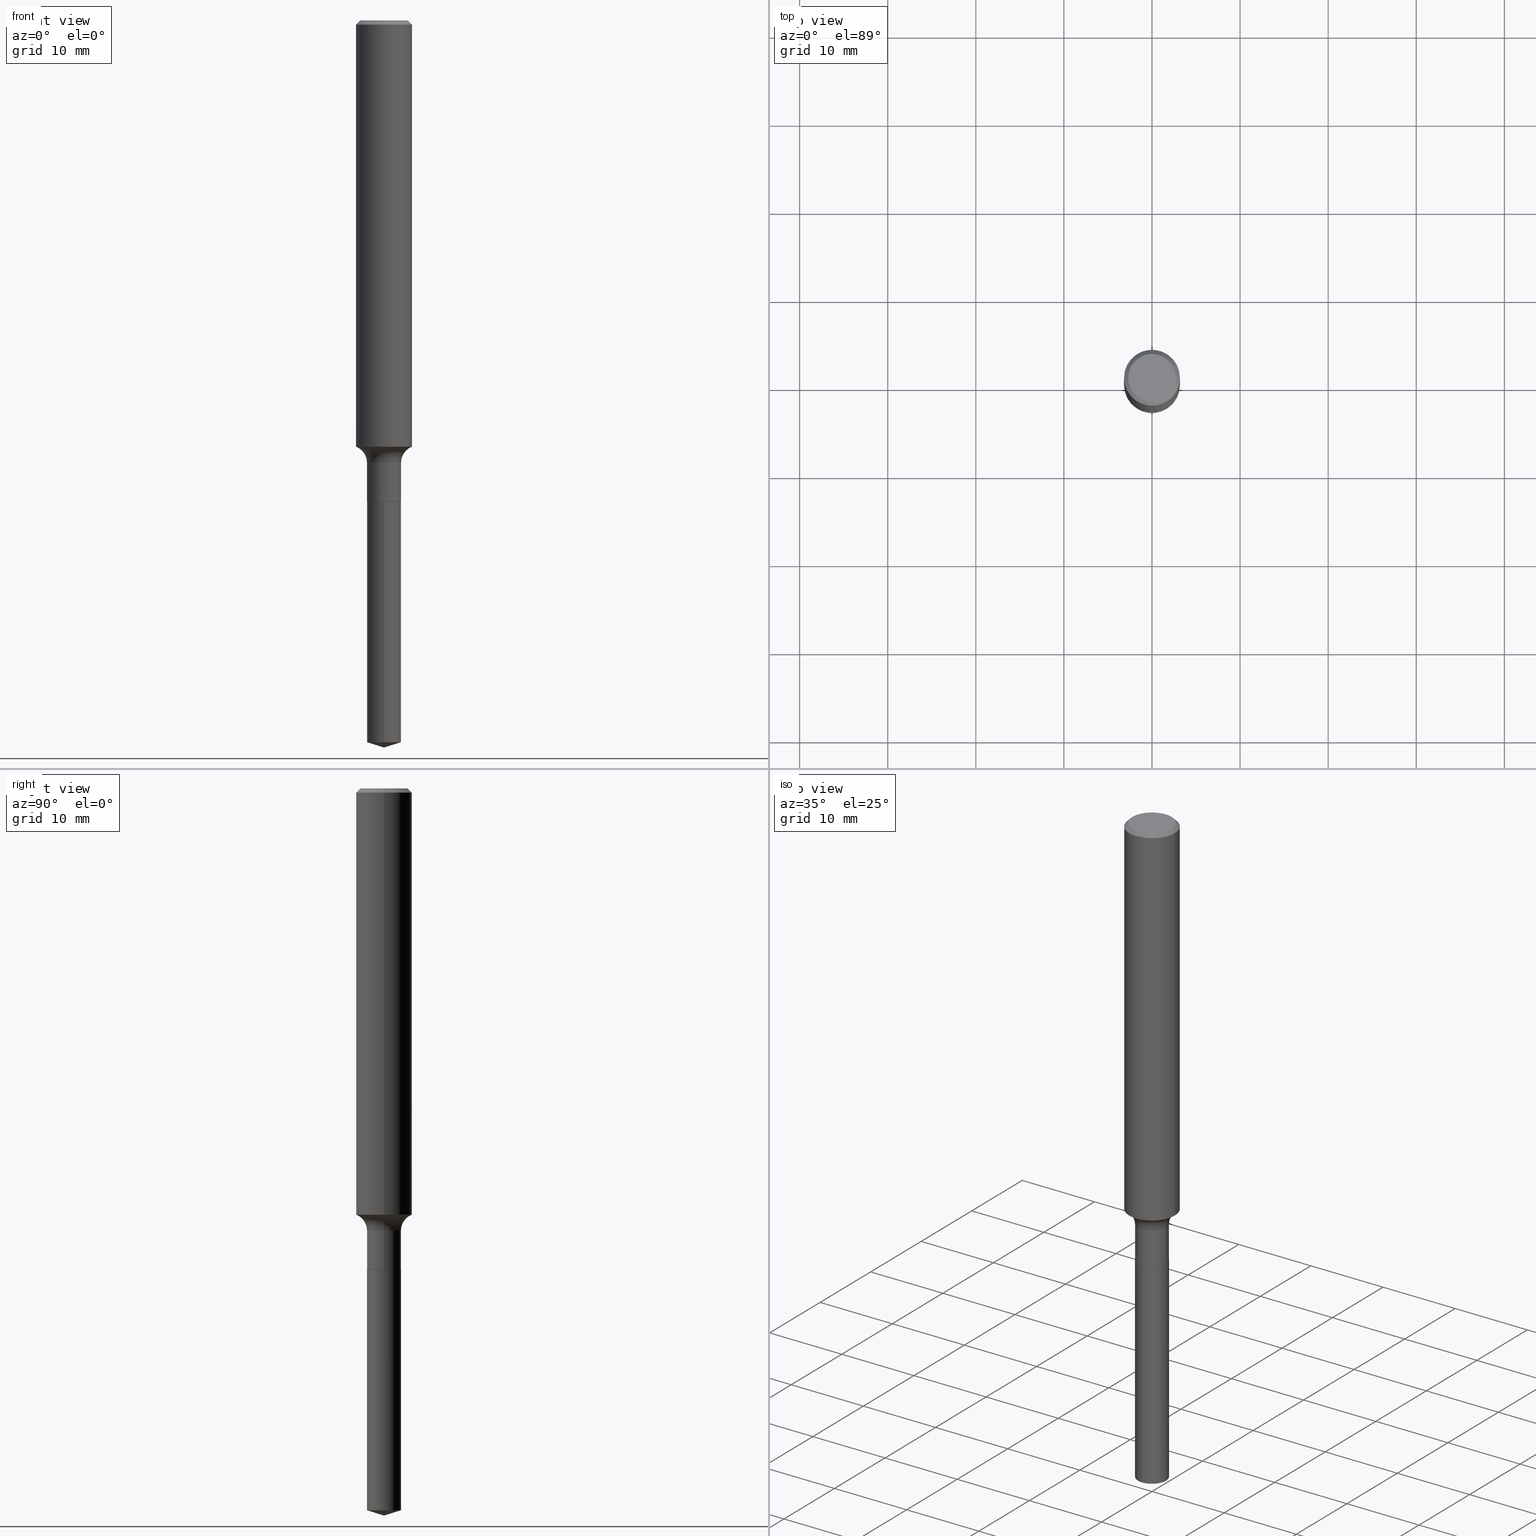
[diagram: canonical four-view strip — front | top / right | iso, engineering-drawing reading convention]
A machine part, canonical four-view strip (front | top / right | iso — engineering-drawing reading convention). The complete STEP part file that produces these views, byte-faithful:
ISO-10303-21;
HEADER;
FILE_DESCRIPTION (( 'STEP AP203' ),
    '1' );
FILE_NAME ('52321.STEP',
    '2024-04-19T13:37:58',
    ( '' ),
    ( '' ),
    'SwSTEP 2.0',
    'SolidWorks 2023',
    '' );
FILE_SCHEMA (( 'CONFIG_CONTROL_DESIGN' ));
ENDSEC;

DATA;
#1 = ORIENTED_EDGE ( 'NONE', *, *, #85, .F. ) ;
#2 = AXIS2_PLACEMENT_3D ( 'NONE', #127, #201, #11 ) ;
#3 = CIRCLE ( 'NONE', #339, 0.1250000000000000000 ) ;
#4 = EDGE_LOOP ( 'NONE', ( #135, #98 ) ) ;
#5 = DIRECTION ( 'NONE',  ( 1.000000000000000000, -6.982962677686262766E-15, 0.000000000000000000 ) ) ;
#6 = MANIFOLD_SOLID_BREP ( 'Body-Move/Copy2[1]', #26 ) ;
#7 = CARTESIAN_POINT ( 'NONE',  ( -0.07600000000000001199, -6.667627022663171914E-15, -2.151499999999999968 ) ) ;
#8 = ORIENTED_EDGE ( 'NONE', *, *, #227, .F. ) ;
#9 = PERSON_AND_ORGANIZATION ( #51, #421 ) ;
#10 = CARTESIAN_POINT ( 'NONE',  ( 4.658108041399870066E-29, -6.650543756570650760E-15, -1.904791436970479923 ) ) ;
#11 = DIRECTION ( 'NONE',  ( 1.000000000000000000, -6.982962677686267499E-15, 4.876176775795936353E-29 ) ) ;
#12 = CARTESIAN_POINT ( 'NONE',  ( 4.835180923589252545E-29, -6.903356903160668236E-15, -1.977200000000000069 ) ) ;
#13 = EDGE_LOOP ( 'NONE', ( #288, #345, #280, #70 ) ) ;
#14 = PERSON_AND_ORGANIZATION_ROLE ( 'creator' ) ;
#15 = DIRECTION ( 'NONE',  ( -6.982962677686265922E-15, -1.000000000000000000, 0.000000000000000000 ) ) ;
#16 = PERSON_AND_ORGANIZATION_ROLE ( 'design_owner' ) ;
#17 = EDGE_CURVE ( 'NONE', #256, #436, #449, .T. ) ;
#18 = AXIS2_PLACEMENT_3D ( 'NONE', #110, #335, #264 ) ;
#19 = ORIENTED_EDGE ( 'NONE', *, *, #361, .F. ) ;
#20 = DATE_TIME_ROLE ( 'classification_date' ) ;
#21 = DESIGN_CONTEXT ( 'detailed design', #482, 'design' ) ;
#22 = EDGE_CURVE ( 'NONE', #256, #107, #464, .T. ) ;
#23 = CALENDAR_DATE ( 2024, 19, 4 ) ;
#24 = CARTESIAN_POINT ( 'NONE',  ( -8.833118292718339278E-28, 1.261116398868396196E-13, 36.12007874015748143 ) ) ;
#25 = AXIS2_PLACEMENT_3D ( 'NONE', #332, #69, #301 ) ;
#26 = CLOSED_SHELL ( 'NONE', ( #354, #43, #336, #484, #233 ) ) ;
#27 = EDGE_CURVE ( 'NONE', #355, #222, #452, .T. ) ;
#28 = ORIENTED_EDGE ( 'NONE', *, *, #405, .F. ) ;
#29 = DIRECTION ( 'NONE',  ( -2.445468806185136597E-29, 3.491481338843145583E-15, 1.000000000000000000 ) ) ;
#30 = ORIENTED_EDGE ( 'NONE', *, *, #227, .T. ) ;
#31 = DIRECTION ( 'NONE',  ( -0.7071067811866259545, 7.493145998870638150E-15, 0.7071067811864690800 ) ) ;
#32 = APPROVAL ( #160, 'UNSPECIFIED' ) ;
#33 = EDGE_CURVE ( 'NONE', #436, #406, #439, .T. ) ;
#34 = PRODUCT_DEFINITION_FORMATION_WITH_SPECIFIED_SOURCE ( 'ANY', '', #238, .NOT_KNOWN. ) ;
#35 = CARTESIAN_POINT ( 'NONE',  ( 5.262648870910414216E-29, -7.513667841190447972E-15, -2.151999999999999691 ) ) ;
#36 = AXIS2_PLACEMENT_3D ( 'NONE', #35, #266, #182 ) ;
#37 = EDGE_CURVE ( 'NONE', #478, #126, #112, .T. ) ;
#38 = CONICAL_SURFACE ( 'NONE', #208, 124.8659371009130439, 1.265363707695887019 ) ;
#39 = AXIS2_PLACEMENT_3D ( 'NONE', #108, #144, #262 ) ;
#40 = DIRECTION ( 'NONE',  ( 2.445468806185136597E-29, -3.491481338843145583E-15, -1.000000000000000000 ) ) ;
#41 = CARTESIAN_POINT ( 'NONE',  ( 0.1250000000000000000, -9.383356098140928781E-16, -0.01875000000000014155 ) ) ;
#42 = ORIENTED_EDGE ( 'NONE', *, *, #308, .F. ) ;
#43 = ADVANCED_FACE ( 'NONE', ( #375 ), #272, .T. ) ;
#44 = CARTESIAN_POINT ( 'NONE',  ( 0.000000000000000000, 0.000000000000000000, 0.000000000000000000 ) ) ;
#45 = ORIENTED_EDGE ( 'NONE', *, *, #361, .T. ) ;
#46 = PERSON_AND_ORGANIZATION ( #51, #421 ) ;
#47 = CIRCLE ( 'NONE', #313, 0.1250000000000002776 ) ;
#48 = VECTOR ( 'NONE', #459, 39.37007874015748143 ) ;
#49 = DIRECTION ( 'NONE',  ( 6.982962677686265922E-15, 1.000000000000000000, -3.491456751938116004E-15 ) ) ;
#50 = COORDINATED_UNIVERSAL_TIME_OFFSET ( 5, 0, .BEHIND. ) ;
#51 = PERSON ( 'UNSPECIFIED', 'UNSPECIFIED', 'UNSPECIFIED', ('UNSPECIFIED'), ('UNSPECIFIED'), ('UNSPECIFIED') ) ;
#52 = CARTESIAN_POINT ( 'NONE',  ( 5.262648870910414216E-29, -7.513667841190447972E-15, -2.151999999999999691 ) ) ;
#53 = PLANE ( 'NONE',  #286 ) ;
#54 = ORIENTED_EDGE ( 'NONE', *, *, #296, .F. ) ;
#55 = CALENDAR_DATE ( 2024, 19, 4 ) ;
#56 = EDGE_CURVE ( 'NONE', #139, #236, #410, .T. ) ;
#57 =( CONVERSION_BASED_UNIT ( 'INCH', #490 ) LENGTH_UNIT ( ) NAMED_UNIT ( #134 ) );
#58 = DIRECTION ( 'NONE',  ( -6.982962677686265922E-15, -1.000000000000000000, 0.000000000000000000 ) ) ;
#59 = EDGE_LOOP ( 'NONE', ( #28, #319, #132, #45 ) ) ;
#60 = ADVANCED_FACE ( 'NONE', ( #442 ), #128, .T. ) ;
#61 = VECTOR ( 'NONE', #229, 39.37007874015748143 ) ;
#62 = ORIENTED_EDGE ( 'NONE', *, *, #147, .T. ) ;
#63 = LOCAL_TIME ( 9, 37, 58.00000000000000000, #372 ) ;
#64 = CARTESIAN_POINT ( 'NONE',  ( -0.1250000000000000000, -2.469826096136851959E-15, -0.01875000000000014155 ) ) ;
#65 = APPROVAL_ROLE ( '' ) ;
#66 = CARTESIAN_POINT ( 'NONE',  ( 7.947829419169752974E-29, -1.134723444379887918E-14, -3.250000000000000000 ) ) ;
#67 = ORIENTED_EDGE ( 'NONE', *, *, #373, .T. ) ;
#68 =( LENGTH_UNIT ( ) NAMED_UNIT ( * ) SI_UNIT ( $, .METRE. ) );
#69 = DIRECTION ( 'NONE',  ( -2.445468806185136597E-29, 3.491481338843145583E-15, 1.000000000000000000 ) ) ;
#70 = ORIENTED_EDGE ( 'NONE', *, *, #33, .F. ) ;
#71 = CIRCLE ( 'NONE', #170, 0.07599999999999999811 ) ;
#72 = CARTESIAN_POINT ( 'NONE',  ( -5.307051635040773287E-16, -0.07600000000001126688, -3.226037292045197180 ) ) ;
#73 = ORIENTED_EDGE ( 'NONE', *, *, #27, .T. ) ;
#74 = CC_DESIGN_PERSON_AND_ORGANIZATION_ASSIGNMENT ( #174, #16, ( #238 ) ) ;
#75 = DIRECTION ( 'NONE',  ( 0.7071067811865447972, -7.319954787623245001E-15, -0.7071067811865501263 ) ) ;
#76 = CARTESIAN_POINT ( 'NONE',  ( -0.07599999999999998423, 5.400124791776760292E-16, -3.738390668593727996E-30 ) ) ;
#77 = DIRECTION ( 'NONE',  ( 1.000000000000000000, -6.982962677686263555E-15, 0.000000000000000000 ) ) ;
#78 = SECURITY_CLASSIFICATION ( '', '', #327 ) ;
#79 = AXIS2_PLACEMENT_3D ( 'NONE', #88, #86, #358 ) ;
#80 = EDGE_CURVE ( 'NONE', #302, #468, #380, .T. ) ;
#81 = DIRECTION ( 'NONE',  ( 1.000000000000000000, -6.982962677686269866E-15, 0.000000000000000000 ) ) ;
#82 = AXIS2_PLACEMENT_3D ( 'NONE', #97, #172, #435 ) ;
#83 = CIRCLE ( 'NONE', #263, 0.1062499999999999972 ) ;
#84 = VERTEX_POINT ( 'NONE', #342 ) ;
#85 = EDGE_CURVE ( 'NONE', #355, #256, #446, .T. ) ;
#86 = DIRECTION ( 'NONE',  ( -2.445468806185136597E-29, 3.491481338843145583E-15, 1.000000000000000000 ) ) ;
#87 = PERSON_AND_ORGANIZATION ( #51, #421 ) ;
#88 = CARTESIAN_POINT ( 'NONE',  ( -1.591006383764330940E-46, 2.271535455632768948E-32, 6.505936120470318766E-18 ) ) ;
#89 = ORIENTED_EDGE ( 'NONE', *, *, #317, .T. ) ;
#90 = PERSON_AND_ORGANIZATION ( #51, #421 ) ;
#91 = CONICAL_SURFACE ( 'NONE', #278, 0.1250000000000000000, 0.7853981633974445042 ) ;
#92 = ADVANCED_FACE ( 'NONE', ( #407 ), #473, .F. ) ;
#93 = DIRECTION ( 'NONE',  ( 1.000000000000000000, -6.982962677686263555E-15, 0.000000000000000000 ) ) ;
#94 = VERTEX_POINT ( 'NONE', #72 ) ;
#95 = FACE_OUTER_BOUND ( 'NONE', #359, .T. ) ;
#96 = ORIENTED_EDGE ( 'NONE', *, *, #417, .T. ) ;
#97 = CARTESIAN_POINT ( 'NONE',  ( 0.000000000000000000, 0.000000000000000000, 0.000000000000000000 ) ) ;
#98 = ORIENTED_EDGE ( 'NONE', *, *, #241, .T. ) ;
#99 = APPROVAL_ROLE ( '' ) ;
#100 = CARTESIAN_POINT ( 'NONE',  ( 0.000000000000000000, 0.000000000000000000, 0.000000000000000000 ) ) ;
#101 = APPROVAL_PERSON_ORGANIZATION ( #9, #32, #99 ) ;
#102 = ORIENTED_EDGE ( 'NONE', *, *, #443, .T. ) ;
#103 = CARTESIAN_POINT ( 'NONE',  ( 5.400124791777550139E-16, 0.07599999999998874323, -3.226037292045197180 ) ) ;
#104 = CARTESIAN_POINT ( 'NONE',  ( 7.947830067142860884E-29, -1.134723444379887918E-14, -3.250000000000000000 ) ) ;
#105 = ORIENTED_EDGE ( 'NONE', *, *, #56, .F. ) ;
#106 = DIRECTION ( 'NONE',  ( 2.445468806185136597E-29, -3.491481338843145583E-15, -1.000000000000000000 ) ) ;
#107 = VERTEX_POINT ( 'NONE', #299 ) ;
#108 = CARTESIAN_POINT ( 'NONE',  ( 4.835180923589252545E-29, -6.903356903160668236E-15, -1.977200000000000069 ) ) ;
#109 = CIRCLE ( 'NONE', #276, 0.07799999999999993050 ) ;
#110 = CARTESIAN_POINT ( 'NONE',  ( 4.585254011597165626E-31, -6.546527510330947764E-17, -0.01875000000000014155 ) ) ;
#111 = EDGE_CURVE ( 'NONE', #129, #236, #3, .T. ) ;
#112 = CIRCLE ( 'NONE', #36, 0.07599999999999999811 ) ;
#113 = DIRECTION ( 'NONE',  ( -2.445485975129154675E-29, 3.491456751938116004E-15, 1.000000000000000000 ) ) ;
#114 = CARTESIAN_POINT ( 'NONE',  ( -8.833118292718339278E-28, 1.261116398868396196E-13, 36.12007874015748143 ) ) ;
#115 = ORIENTED_EDGE ( 'NONE', *, *, #443, .F. ) ;
#116 = CARTESIAN_POINT ( 'NONE',  ( 5.262648870910414216E-29, -7.513667841190447972E-15, -2.151999999999999691 ) ) ;
#117 = CC_DESIGN_SECURITY_CLASSIFICATION ( #78, ( #34 ) ) ;
#118 = CIRCLE ( 'NONE', #79, 0.1062499999999999972 ) ;
#119 = DIRECTION ( 'NONE',  ( -6.982962677686265922E-15, -1.000000000000000000, 3.594536833768767206E-15 ) ) ;
#120 = CC_DESIGN_PERSON_AND_ORGANIZATION_ASSIGNMENT ( #46, #14, ( #34 ) ) ;
#121 = AXIS2_PLACEMENT_3D ( 'NONE', #100, #328, #215 ) ;
#122 = CARTESIAN_POINT ( 'NONE',  ( 0.07549999999999998379, -8.040881523355760982E-15, -2.151999999999999691 ) ) ;
#123 = CYLINDRICAL_SURFACE ( 'NONE', #178, 0.07599999999999998423 ) ;
#124 = EDGE_LOOP ( 'NONE', ( #199, #320, #325, #203 ) ) ;
#125 = EDGE_CURVE ( 'NONE', #94, #468, #316, .T. ) ;
#126 = VERTEX_POINT ( 'NONE', #290 ) ;
#127 = CARTESIAN_POINT ( 'NONE',  ( 0.000000000000000000, 0.000000000000000000, 0.000000000000000000 ) ) ;
#128 = CONICAL_SURFACE ( 'NONE', #265, 0.1250000000000000000, 0.7853981633974445042 ) ;
#129 = VERTEX_POINT ( 'NONE', #64 ) ;
#130 = CYLINDRICAL_SURFACE ( 'NONE', #82, 0.1250000000000001388 ) ;
#131 = CARTESIAN_POINT ( 'NONE',  ( -0.1250000000000002498, -5.762365336870523950E-15, -1.904791436970479923 ) ) ;
#132 = ORIENTED_EDGE ( 'NONE', *, *, #151, .T. ) ;
#133 = CYLINDRICAL_SURFACE ( 'NONE', #2, 0.07599999999999998423 ) ;
#134 = DIMENSIONAL_EXPONENTS ( 1.000000000000000000, 0.000000000000000000, 0.000000000000000000, 0.000000000000000000, 0.000000000000000000, 0.000000000000000000, 0.000000000000000000 ) ;
#135 = ORIENTED_EDGE ( 'NONE', *, *, #37, .T. ) ;
#136 = EDGE_CURVE ( 'NONE', #107, #406, #362, .T. ) ;
#137 = DIRECTION ( 'NONE',  ( -2.445468806185136877E-29, 3.491481338843145188E-15, 1.000000000000000000 ) ) ;
#138 = AXIS2_PLACEMENT_3D ( 'NONE', #24, #113, #441 ) ;
#139 = VERTEX_POINT ( 'NONE', #214 ) ;
#140 = APPROVAL_DATE_TIME ( #470, #180 ) ;
#141 = DIRECTION ( 'NONE',  ( -2.445468806185136597E-29, 3.491481338843145583E-15, 1.000000000000000000 ) ) ;
#142 = FACE_OUTER_BOUND ( 'NONE', #243, .T. ) ;
#143 = EDGE_LOOP ( 'NONE', ( #461, #292, #89, #54 ) ) ;
#144 = DIRECTION ( 'NONE',  ( -2.445468806185136597E-29, 3.491481338843145583E-15, 1.000000000000000000 ) ) ;
#145 = ORIENTED_EDGE ( 'NONE', *, *, #80, .T. ) ;
#146 = DIRECTION ( 'NONE',  ( -2.438088387897960049E-29, 3.491481338843145188E-15, 1.000000000000000000 ) ) ;
#147 = EDGE_CURVE ( 'NONE', #249, #480, #245, .T. ) ;
#148 =( GEOMETRIC_REPRESENTATION_CONTEXT ( 3 ) GLOBAL_UNCERTAINTY_ASSIGNED_CONTEXT ( ( #216 ) ) GLOBAL_UNIT_ASSIGNED_CONTEXT ( ( #57, #218, #155 ) ) REPRESENTATION_CONTEXT ( 'NONE', 'WORKASPACE' ) );
#149 = CARTESIAN_POINT ( 'NONE',  ( -0.07549999999999998379, -6.974558848517462626E-15, -2.151999999999999691 ) ) ;
#150 = CARTESIAN_POINT ( 'NONE',  ( -0.1250000000000001388, 8.881784197001262184E-16, -6.148668862818638533E-30 ) ) ;
#151 = EDGE_CURVE ( 'NONE', #480, #406, #277, .T. ) ;
#152 = FACE_OUTER_BOUND ( 'NONE', #213, .T. ) ;
#153 = CARTESIAN_POINT ( 'NONE',  ( 0.07599999999999998423, -7.434062066664824253E-15, -1.977200000000000069 ) ) ;
#154 = ADVANCED_FACE ( 'NONE', ( #171 ), #430, .T. ) ;
#155 =( NAMED_UNIT ( * ) SI_UNIT ( $, .STERADIAN. ) SOLID_ANGLE_UNIT ( ) );
#156 = DIRECTION ( 'NONE',  ( 0.7071067811866259545, -2.468850131083078659E-15, 0.7071067811864690800 ) ) ;
#157 = DIRECTION ( 'NONE',  ( -2.445468806185136597E-29, 3.491481338843145583E-15, 1.000000000000000000 ) ) ;
#158 = VECTOR ( 'NONE', #349, 39.37007874015748854 ) ;
#159 = EDGE_LOOP ( 'NONE', ( #179, #333 ) ) ;
#160 = APPROVAL_STATUS ( 'not_yet_approved' ) ;
#161 = EDGE_LOOP ( 'NONE', ( #477, #67, #176, #115 ) ) ;
#162 = PERSON_AND_ORGANIZATION ( #51, #421 ) ;
#163 = DIRECTION ( 'NONE',  ( -2.445485975129154675E-29, 3.491456751938116004E-15, 1.000000000000000000 ) ) ;
#164 = DIRECTION ( 'NONE',  ( -2.445468806185136597E-29, 3.491481338843145583E-15, 1.000000000000000000 ) ) ;
#165 = EDGE_LOOP ( 'NONE', ( #300, #223, #431, #389 ) ) ;
#166 = DATE_AND_TIME ( #55, #356 ) ;
#167 = CARTESIAN_POINT ( 'NONE',  ( 0.1539999999999999425, -7.978733155524352300E-15, -1.977200000000000069 ) ) ;
#168 = CIRCLE ( 'NONE', #346, 0.07599999999999999811 ) ;
#169 = APPROVAL_STATUS ( 'not_yet_approved' ) ;
#170 = AXIS2_PLACEMENT_3D ( 'NONE', #357, #426, #467 ) ;
#171 = FACE_OUTER_BOUND ( 'NONE', #367, .T. ) ;
#172 = DIRECTION ( 'NONE',  ( -2.445468806185136597E-29, 3.491481338843145583E-15, 1.000000000000000000 ) ) ;
#173 = APPROVAL ( #463, 'UNSPECIFIED' ) ;
#174 = PERSON_AND_ORGANIZATION ( #51, #421 ) ;
#175 = CARTESIAN_POINT ( 'NONE',  ( -1.591006383764330940E-46, 2.271535455632768948E-32, 6.505936120470318766E-18 ) ) ;
#176 = ORIENTED_EDGE ( 'NONE', *, *, #317, .F. ) ;
#177 = PERSON_AND_ORGANIZATION ( #51, #421 ) ;
#178 = AXIS2_PLACEMENT_3D ( 'NONE', #44, #330, #396 ) ;
#179 = ORIENTED_EDGE ( 'NONE', *, *, #187, .F. ) ;
#180 = APPROVAL ( #169, 'UNSPECIFIED' ) ;
#181 = EDGE_LOOP ( 'NONE', ( #1, #73, #397, #427 ) ) ;
#182 = DIRECTION ( 'NONE',  ( -6.982962677686265922E-15, -1.000000000000000000, 3.594536833768767206E-15 ) ) ;
#183 = DIRECTION ( 'NONE',  ( -2.445468806185136597E-29, 3.491481338843145583E-15, 1.000000000000000000 ) ) ;
#184 = AXIS2_PLACEMENT_3D ( 'NONE', #447, #444, #260 ) ;
#185 = AXIS2_PLACEMENT_3D ( 'NONE', #411, #183, #412 ) ;
#186 = DIRECTION ( 'NONE',  ( -1.000000000000000000, 6.982962677686266711E-15, 0.000000000000000000 ) ) ;
#187 = EDGE_CURVE ( 'NONE', #222, #355, #310, .T. ) ;
#188 = CYLINDRICAL_SURFACE ( 'NONE', #457, 0.07599999999999999811 ) ;
#189 = CC_DESIGN_APPROVAL ( #180, ( #466 ) ) ;
#190 = AXIS2_PLACEMENT_3D ( 'NONE', #226, #29, #382 ) ;
#191 = CC_DESIGN_PERSON_AND_ORGANIZATION_ASSIGNMENT ( #177, #374, ( #466 ) ) ;
#192 = DIRECTION ( 'NONE',  ( -2.445468806185136597E-29, 3.491481338843145583E-15, 1.000000000000000000 ) ) ;
#193 = ORIENTED_EDGE ( 'NONE', *, *, #308, .T. ) ;
#194 = EDGE_CURVE ( 'NONE', #302, #94, #422, .T. ) ;
#195 = DIRECTION ( 'NONE',  ( 2.445485975129154395E-29, -3.491456751938116004E-15, -1.000000000000000000 ) ) ;
#196 = ORIENTED_EDGE ( 'NONE', *, *, #111, .T. ) ;
#197 = VECTOR ( 'NONE', #137, 39.37007874015748143 ) ;
#198 = CARTESIAN_POINT ( 'NONE',  ( 5.262648870910414216E-29, -7.513667841190447972E-15, -2.151999999999999691 ) ) ;
#199 = ORIENTED_EDGE ( 'NONE', *, *, #147, .F. ) ;
#200 = CALENDAR_DATE ( 2024, 19, 4 ) ;
#201 = DIRECTION ( 'NONE',  ( -2.445468806185136597E-29, 3.491481338843145583E-15, 1.000000000000000000 ) ) ;
#202 = CARTESIAN_POINT ( 'NONE',  ( 5.262648870910414216E-29, -7.513667841190447972E-15, -2.151999999999999691 ) ) ;
#203 = ORIENTED_EDGE ( 'NONE', *, *, #151, .F. ) ;
#204 = ADVANCED_BREP_SHAPE_REPRESENTATION ( '52321', ( #6, #492, #121 ), #148 ) ;
#205 = APPLICATION_PROTOCOL_DEFINITION ( 'international standard', 'config_control_design', 1994, #456 ) ;
#206 = DIRECTION ( 'NONE',  ( -2.445468806185136597E-29, 3.491481338843145583E-15, 1.000000000000000000 ) ) ;
#207 = ORIENTED_EDGE ( 'NONE', *, *, #409, .F. ) ;
#208 = AXIS2_PLACEMENT_3D ( 'NONE', #114, #383, #307 ) ;
#209 = PERSON_AND_ORGANIZATION ( #51, #421 ) ;
#210 = EDGE_CURVE ( 'NONE', #139, #84, #118, .T. ) ;
#211 = AXIS2_PLACEMENT_3D ( 'NONE', #10, #157, #5 ) ;
#212 = CONICAL_SURFACE ( 'NONE', #25, 0.07549999999999998379, 0.7853981633975591903 ) ;
#213 = EDGE_LOOP ( 'NONE', ( #423, #295, #364 ) ) ;
#214 = CARTESIAN_POINT ( 'NONE',  ( 0.1062499999999999972, -8.259777185439879685E-16, 6.505936120475800733E-18 ) ) ;
#215 = DIRECTION ( 'NONE',  ( 1.000000000000000000, 0.000000000000000000, 0.000000000000000000 ) ) ;
#216 = UNCERTAINTY_MEASURE_WITH_UNIT (LENGTH_MEASURE( 1.000000000000000082E-05 ), #57, 'distance_accuracy_value', 'NONE');
#217 = FACE_OUTER_BOUND ( 'NONE', #239, .T. ) ;
#218 =( NAMED_UNIT ( * ) PLANE_ANGLE_UNIT ( ) SI_UNIT ( $, .RADIAN. ) );
#219 = ADVANCED_FACE ( 'NONE', ( #366 ), #123, .T. ) ;
#220 = ORIENTED_EDGE ( 'NONE', *, *, #296, .T. ) ;
#221 = VECTOR ( 'NONE', #246, 39.37007874015748143 ) ;
#222 = VERTEX_POINT ( 'NONE', #122 ) ;
#223 = ORIENTED_EDGE ( 'NONE', *, *, #409, .T. ) ;
#224 = CARTESIAN_POINT ( 'NONE',  ( 4.585254011597165626E-31, -6.546527510330947764E-17, -0.01875000000000014155 ) ) ;
#225 = DIRECTION ( 'NONE',  ( 7.105427357601001859E-15, 1.000000000000000000, -3.491481338843145583E-15 ) ) ;
#226 = CARTESIAN_POINT ( 'NONE',  ( 4.835180923589252545E-29, -6.903356903160668236E-15, -1.977200000000000069 ) ) ;
#227 = EDGE_CURVE ( 'NONE', #107, #256, #386, .T. ) ;
#228 = AXIS2_PLACEMENT_3D ( 'NONE', #167, #370, #429 ) ;
#229 = DIRECTION ( 'NONE',  ( -2.445468806185136877E-29, 3.491481338843145188E-15, 1.000000000000000000 ) ) ;
#230 = EDGE_CURVE ( 'NONE', #222, #107, #279, .T. ) ;
#231 = AXIS2_PLACEMENT_3D ( 'NONE', #52, #163, #257 ) ;
#232 = PRODUCT_DEFINITION_SHAPE ( 'NONE', 'NONE',  #466 ) ;
#233 = ADVANCED_FACE ( 'NONE', ( #237 ), #53, .F. ) ;
#234 = DIRECTION ( 'NONE',  ( 1.000000000000000000, -6.982962677686263555E-15, 0.000000000000000000 ) ) ;
#235 = DIRECTION ( 'NONE',  ( 1.000000000000000000, -6.982962677686266711E-15, 4.876176775795935793E-29 ) ) ;
#236 = VERTEX_POINT ( 'NONE', #41 ) ;
#237 = FACE_OUTER_BOUND ( 'NONE', #4, .T. ) ;
#238 = PRODUCT ( '52321', '52321', '', ( #395 ) ) ;
#239 = EDGE_LOOP ( 'NONE', ( #193, #460 ) ) ;
#240 = DATE_TIME_ROLE ( 'creation_date' ) ;
#241 = EDGE_CURVE ( 'NONE', #126, #478, #71, .T. ) ;
#242 = DIRECTION ( 'NONE',  ( -2.445468806185136597E-29, 3.491481338843145583E-15, 1.000000000000000000 ) ) ;
#243 = EDGE_LOOP ( 'NONE', ( #285, #331, #8, #341 ) ) ;
#244 = CIRCLE ( 'NONE', #18, 0.1250000000000000000 ) ;
#245 = CIRCLE ( 'NONE', #211, 0.1250000000000002776 ) ;
#246 = DIRECTION ( 'NONE',  ( -6.659769872151621833E-15, -0.9537169507482252673, 0.3007057995042782816 ) ) ;
#247 = ORIENTED_EDGE ( 'NONE', *, *, #194, .F. ) ;
#248 = DIRECTION ( 'NONE',  ( 1.000000000000000000, -6.982962677686265133E-15, 4.883557194083111780E-29 ) ) ;
#249 = VERTEX_POINT ( 'NONE', #131 ) ;
#250 = EDGE_CURVE ( 'NONE', #480, #249, #47, .T. ) ;
#251 = ORIENTED_EDGE ( 'NONE', *, *, #125, .F. ) ;
#252 = DATE_AND_TIME ( #200, #297 ) ;
#253 = LOCAL_TIME ( 9, 37, 58.00000000000000000, #475 ) ;
#254 = APPLICATION_PROTOCOL_DEFINITION ( 'international standard', 'config_control_design', 1994, #482 ) ;
#255 = LINE ( 'NONE', #479, #385 ) ;
#256 = VERTEX_POINT ( 'NONE', #7 ) ;
#257 = DIRECTION ( 'NONE',  ( -6.982962677686265922E-15, -1.000000000000000000, 3.594536833768767206E-15 ) ) ;
#258 = CARTESIAN_POINT ( 'NONE',  ( 4.585254011597165626E-31, -6.546527510330947764E-17, -0.01875000000000014155 ) ) ;
#259 = CARTESIAN_POINT ( 'NONE',  ( -0.07549999999999998379, -6.977208075691573038E-15, -2.151999999999999691 ) ) ;
#260 = DIRECTION ( 'NONE',  ( -1.000000000000000000, 6.982962677686265922E-15, -4.876176775795935793E-29 ) ) ;
#261 = EDGE_LOOP ( 'NONE', ( #30, #399, #19, #303 ) ) ;
#262 = DIRECTION ( 'NONE',  ( 1.000000000000000000, -6.982962677686265133E-15, 4.883557194083111780E-29 ) ) ;
#263 = AXIS2_PLACEMENT_3D ( 'NONE', #175, #377, #340 ) ;
#264 = DIRECTION ( 'NONE',  ( 1.000000000000000000, -6.982962677686266711E-15, 0.000000000000000000 ) ) ;
#265 = AXIS2_PLACEMENT_3D ( 'NONE', #224, #106, #186 ) ;
#266 = DIRECTION ( 'NONE',  ( -2.445485975129154675E-29, 3.491456751938116004E-15, 1.000000000000000000 ) ) ;
#267 = DIRECTION ( 'NONE',  ( -2.445468806185136877E-29, 3.491481338843145188E-15, 1.000000000000000000 ) ) ;
#268 = CC_DESIGN_DATE_AND_TIME_ASSIGNMENT ( #166, #20, ( #78 ) ) ;
#269 = ADVANCED_FACE ( 'NONE', ( #420 ), #413, .F. ) ;
#270 = LOCAL_TIME ( 9, 37, 58.00000000000000000, #360 ) ;
#271 = FACE_OUTER_BOUND ( 'NONE', #445, .T. ) ;
#272 = CONICAL_SURFACE ( 'NONE', #138, 124.8659371009130439, 1.265363707695887019 ) ;
#273 = EDGE_CURVE ( 'NONE', #468, #94, #168, .T. ) ;
#274 = CARTESIAN_POINT ( 'NONE',  ( 4.585254011597165626E-31, -6.546527510330947764E-17, -0.01875000000000014155 ) ) ;
#275 = FACE_OUTER_BOUND ( 'NONE', #261, .T. ) ;
#276 = AXIS2_PLACEMENT_3D ( 'NONE', #352, #225, #489 ) ;
#277 = CIRCLE ( 'NONE', #228, 0.07799999999999993050 ) ;
#278 = AXIS2_PLACEMENT_3D ( 'NONE', #274, #40, #415 ) ;
#279 = LINE ( 'NONE', #281, #488 ) ;
#280 = ORIENTED_EDGE ( 'NONE', *, *, #136, .T. ) ;
#281 = CARTESIAN_POINT ( 'NONE',  ( 0.07549999999999998379, -8.040881523355760982E-15, -2.151999999999999691 ) ) ;
#282 = ORIENTED_EDGE ( 'NONE', *, *, #273, .T. ) ;
#283 = APPROVAL_ROLE ( '' ) ;
#284 = CARTESIAN_POINT ( 'NONE',  ( 4.658108041399870066E-29, -6.650543756570650760E-15, -1.904791436970479923 ) ) ;
#285 = ORIENTED_EDGE ( 'NONE', *, *, #187, .T. ) ;
#286 = AXIS2_PLACEMENT_3D ( 'NONE', #202, #195, #49 ) ;
#287 = ADVANCED_FACE ( 'NONE', ( #142 ), #212, .T. ) ;
#288 = ORIENTED_EDGE ( 'NONE', *, *, #17, .F. ) ;
#289 = CALENDAR_DATE ( 2024, 19, 4 ) ;
#290 = CARTESIAN_POINT ( 'NONE',  ( 5.400124791777551125E-16, 0.07599999999999249023, -2.152000000000000135 ) ) ;
#291 = DIRECTION ( 'NONE',  ( -2.445485975129154675E-29, 3.491456751938116004E-15, 1.000000000000000000 ) ) ;
#292 = ORIENTED_EDGE ( 'NONE', *, *, #56, .T. ) ;
#293 = CARTESIAN_POINT ( 'NONE',  ( 7.889192005372638676E-29, -1.126362259633498391E-14, -3.226037292045197180 ) ) ;
#294 = CARTESIAN_POINT ( 'NONE',  ( -5.307051635041035583E-16, -0.07600000000000750600, -2.151999999999999691 ) ) ;
#295 = ORIENTED_EDGE ( 'NONE', *, *, #194, .T. ) ;
#296 = EDGE_CURVE ( 'NONE', #84, #129, #255, .T. ) ;
#297 = LOCAL_TIME ( 9, 37, 58.00000000000000000, #401 ) ;
#298 = LINE ( 'NONE', #371, #197 ) ;
#299 = CARTESIAN_POINT ( 'NONE',  ( 0.07599999999999999811, -8.042627264025184852E-15, -2.151499999999999968 ) ) ;
#300 = ORIENTED_EDGE ( 'NONE', *, *, #125, .T. ) ;
#301 = DIRECTION ( 'NONE',  ( 1.000000000000000000, -6.982962677686263555E-15, 0.000000000000000000 ) ) ;
#302 = VERTEX_POINT ( 'NONE', #66 ) ;
#303 = ORIENTED_EDGE ( 'NONE', *, *, #136, .F. ) ;
#304 = VECTOR ( 'NONE', #267, 39.37007874015748143 ) ;
#305 = ADVANCED_FACE ( 'NONE', ( #217 ), #343, .F. ) ;
#306 = EDGE_LOOP ( 'NONE', ( #247, #145, #251 ) ) ;
#307 = DIRECTION ( 'NONE',  ( -6.982962677686265922E-15, -1.000000000000000000, 3.500519750498761230E-15 ) ) ;
#308 = EDGE_CURVE ( 'NONE', #84, #139, #83, .T. ) ;
#309 = VECTOR ( 'NONE', #291, 39.37007874015748143 ) ;
#310 = CIRCLE ( 'NONE', #432, 0.07549999999999998379 ) ;
#311 = LINE ( 'NONE', #454, #348 ) ;
#312 = FACE_OUTER_BOUND ( 'NONE', #161, .T. ) ;
#313 = AXIS2_PLACEMENT_3D ( 'NONE', #284, #242, #324 ) ;
#314 = DIRECTION ( 'NONE',  ( 1.000000000000000000, -6.982962677686269077E-15, 0.000000000000000000 ) ) ;
#315 = ORIENTED_EDGE ( 'NONE', *, *, #241, .F. ) ;
#316 = CIRCLE ( 'NONE', #414, 0.07599999999999999811 ) ;
#317 = EDGE_CURVE ( 'NONE', #236, #129, #244, .T. ) ;
#318 = CARTESIAN_POINT ( 'NONE',  ( 0.000000000000000000, 0.000000000000000000, 0.000000000000000000 ) ) ;
#319 = ORIENTED_EDGE ( 'NONE', *, *, #250, .F. ) ;
#320 = ORIENTED_EDGE ( 'NONE', *, *, #405, .T. ) ;
#321 = APPROVAL_DATE_TIME ( #369, #173 ) ;
#322 = CYLINDRICAL_SURFACE ( 'NONE', #231, 0.07599999999999999811 ) ;
#323 = ADVANCED_FACE ( 'NONE', ( #408 ), #476, .F. ) ;
#324 = DIRECTION ( 'NONE',  ( 1.000000000000000000, -6.982962677686262766E-15, 0.000000000000000000 ) ) ;
#325 = ORIENTED_EDGE ( 'NONE', *, *, #33, .T. ) ;
#326 = CIRCLE ( 'NONE', #481, 0.07599999999999998423 ) ;
#327 = SECURITY_CLASSIFICATION_LEVEL ( 'unclassified' ) ;
#328 = DIRECTION ( 'NONE',  ( 0.000000000000000000, 0.000000000000000000, 1.000000000000000000 ) ) ;
#329 = AXIS2_PLACEMENT_3D ( 'NONE', #318, #192, #235 ) ;
#330 = DIRECTION ( 'NONE',  ( -2.445468806185136597E-29, 3.491481338843145583E-15, 1.000000000000000000 ) ) ;
#331 = ORIENTED_EDGE ( 'NONE', *, *, #85, .T. ) ;
#332 = CARTESIAN_POINT ( 'NONE',  ( 5.262648870910414216E-29, -7.513667841190447972E-15, -2.151999999999999691 ) ) ;
#333 = ORIENTED_EDGE ( 'NONE', *, *, #27, .F. ) ;
#334 = CALENDAR_DATE ( 2024, 19, 4 ) ;
#335 = DIRECTION ( 'NONE',  ( -2.445468806185136597E-29, 3.491481338843145583E-15, 1.000000000000000000 ) ) ;
#336 = ADVANCED_FACE ( 'NONE', ( #152 ), #38, .T. ) ;
#337 = CC_DESIGN_APPROVAL ( #173, ( #78 ) ) ;
#338 = DATE_AND_TIME ( #23, #253 ) ;
#339 = AXIS2_PLACEMENT_3D ( 'NONE', #258, #141, #365 ) ;
#340 = DIRECTION ( 'NONE',  ( 1.000000000000000000, -6.982962677686266711E-15, 4.875930095424100059E-29 ) ) ;
#341 = ORIENTED_EDGE ( 'NONE', *, *, #230, .F. ) ;
#342 = CARTESIAN_POINT ( 'NONE',  ( -0.1062499999999999972, 7.746724220558198188E-16, 6.505936120465015526E-18 ) ) ;
#343 = PLANE ( 'NONE',  #184 ) ;
#344 = ORIENTED_EDGE ( 'NONE', *, *, #373, .F. ) ;
#345 = ORIENTED_EDGE ( 'NONE', *, *, #22, .T. ) ;
#346 = AXIS2_PLACEMENT_3D ( 'NONE', #398, #363, #58 ) ;
#347 = VECTOR ( 'NONE', #75, 39.37007874015748854 ) ;
#348 = VECTOR ( 'NONE', #381, 39.37007874015748143 ) ;
#349 = DIRECTION ( 'NONE',  ( 6.776566513254247093E-15, 0.9537169507482274877, 0.3007057995042716203 ) ) ;
#350 = DIRECTION ( 'NONE',  ( 1.000000000000000000, -6.982962677686265922E-15, 4.876176775795935793E-29 ) ) ;
#351 = DIRECTION ( 'NONE',  ( -2.445468806185136597E-29, 3.491481338843145583E-15, 1.000000000000000000 ) ) ;
#352 = CARTESIAN_POINT ( 'NONE',  ( -0.1539999999999999425, -5.809121090090114556E-15, -1.977200000000000069 ) ) ;
#353 = CC_DESIGN_PERSON_AND_ORGANIZATION_ASSIGNMENT ( #87, #458, ( #78 ) ) ;
#354 = ADVANCED_FACE ( 'NONE', ( #448 ), #188, .T. ) ;
#355 = VERTEX_POINT ( 'NONE', #149 ) ;
#356 = LOCAL_TIME ( 9, 37, 58.00000000000000000, #50 ) ;
#357 = CARTESIAN_POINT ( 'NONE',  ( 5.262648870910414216E-29, -7.513667841190447972E-15, -2.151999999999999691 ) ) ;
#358 = DIRECTION ( 'NONE',  ( 1.000000000000000000, -6.982962677686266711E-15, 4.875930095424100059E-29 ) ) ;
#359 = EDGE_LOOP ( 'NONE', ( #207, #282, #96, #315 ) ) ;
#360 = COORDINATED_UNIVERSAL_TIME_OFFSET ( 5, 0, .BEHIND. ) ;
#361 = EDGE_CURVE ( 'NONE', #406, #436, #326, .T. ) ;
#362 = LINE ( 'NONE', #424, #48 ) ;
#363 = DIRECTION ( 'NONE',  ( -2.445485975129154675E-29, 3.491456751938116004E-15, 1.000000000000000000 ) ) ;
#364 = ORIENTED_EDGE ( 'NONE', *, *, #273, .F. ) ;
#365 = DIRECTION ( 'NONE',  ( 1.000000000000000000, -6.982962677686266711E-15, 0.000000000000000000 ) ) ;
#366 = FACE_OUTER_BOUND ( 'NONE', #13, .T. ) ;
#367 = EDGE_LOOP ( 'NONE', ( #344, #62, #102, #434 ) ) ;
#368 = AXIS2_PLACEMENT_3D ( 'NONE', #440, #469, #234 ) ;
#369 = DATE_AND_TIME ( #289, #270 ) ;
#370 = DIRECTION ( 'NONE',  ( -6.982962677686266711E-15, -1.000000000000000000, 3.491481338843145583E-15 ) ) ;
#371 = CARTESIAN_POINT ( 'NONE',  ( 0.1250000000000001388, -8.728703347107843249E-16, 6.095220969744926748E-30 ) ) ;
#372 = COORDINATED_UNIVERSAL_TIME_OFFSET ( 5, 0, .BEHIND. ) ;
#373 = EDGE_CURVE ( 'NONE', #249, #129, #486, .T. ) ;
#374 = PERSON_AND_ORGANIZATION_ROLE ( 'creator' ) ;
#375 = FACE_OUTER_BOUND ( 'NONE', #306, .T. ) ;
#376 = AXIS2_PLACEMENT_3D ( 'NONE', #450, #379, #77 ) ;
#377 = DIRECTION ( 'NONE',  ( -2.445468806185136597E-29, 3.491481338843145583E-15, 1.000000000000000000 ) ) ;
#378 = ADVANCED_FACE ( 'NONE', ( #271 ), #91, .T. ) ;
#379 = DIRECTION ( 'NONE',  ( -2.445468806185136597E-29, 3.491481338843145583E-15, 1.000000000000000000 ) ) ;
#380 = LINE ( 'NONE', #104, #158 ) ;
#381 = DIRECTION ( 'NONE',  ( -2.445485975129154675E-29, 3.491456751938116004E-15, 1.000000000000000000 ) ) ;
#382 = DIRECTION ( 'NONE',  ( 1.000000000000000000, -6.982962677686269866E-15, 0.000000000000000000 ) ) ;
#383 = DIRECTION ( 'NONE',  ( -2.445485975129154675E-29, 3.491456751938116004E-15, 1.000000000000000000 ) ) ;
#384 = CARTESIAN_POINT ( 'NONE',  ( 5.262648870910414216E-29, -7.513667841190447972E-15, -2.151999999999999691 ) ) ;
#385 = VECTOR ( 'NONE', #471, 39.37007874015748854 ) ;
#386 = CIRCLE ( 'NONE', #394, 0.07599999999999999811 ) ;
#387 = CC_DESIGN_DATE_AND_TIME_ASSIGNMENT ( #338, #240, ( #466 ) ) ;
#388 = CARTESIAN_POINT ( 'NONE',  ( 5.261426136507321415E-29, -7.511922100521028835E-15, -2.151499999999999968 ) ) ;
#389 = ORIENTED_EDGE ( 'NONE', *, *, #417, .F. ) ;
#390 = APPROVAL_DATE_TIME ( #252, #32 ) ;
#391 = AXIS2_PLACEMENT_3D ( 'NONE', #116, #146, #350 ) ;
#392 = CARTESIAN_POINT ( 'NONE',  ( 7.947755524034698986E-29, -1.134734026583812552E-14, -3.250000000000000000 ) ) ;
#393 = PERSON_AND_ORGANIZATION_ROLE ( 'design_supplier' ) ;
#394 = AXIS2_PLACEMENT_3D ( 'NONE', #388, #433, #314 ) ;
#395 = MECHANICAL_CONTEXT ( 'NONE', #456, 'mechanical' ) ;
#396 = DIRECTION ( 'NONE',  ( 1.000000000000000000, -6.982962677686267499E-15, 4.876176775795936353E-29 ) ) ;
#397 = ORIENTED_EDGE ( 'NONE', *, *, #230, .T. ) ;
#398 = CARTESIAN_POINT ( 'NONE',  ( 7.889192005372638676E-29, -1.126362259633498391E-14, -3.226037292045197180 ) ) ;
#399 = ORIENTED_EDGE ( 'NONE', *, *, #17, .T. ) ;
#400 = APPROVAL_PERSON_ORGANIZATION ( #209, #180, #65 ) ;
#401 = COORDINATED_UNIVERSAL_TIME_OFFSET ( 5, 0, .BEHIND. ) ;
#402 = DIRECTION ( 'NONE',  ( -2.445485975129154675E-29, 3.491456751938116004E-15, 1.000000000000000000 ) ) ;
#403 = CLOSED_SHELL ( 'NONE', ( #287, #60, #491, #269, #487, #219, #92, #154, #378, #305, #323, #474 ) ) ;
#404 = CONICAL_SURFACE ( 'NONE', #368, 0.07549999999999998379, 0.7853981633975591903 ) ;
#405 = EDGE_CURVE ( 'NONE', #249, #436, #109, .T. ) ;
#406 = VERTEX_POINT ( 'NONE', #153 ) ;
#407 = FACE_OUTER_BOUND ( 'NONE', #59, .T. ) ;
#408 = FACE_OUTER_BOUND ( 'NONE', #159, .T. ) ;
#409 = EDGE_CURVE ( 'NONE', #468, #126, #311, .T. ) ;
#410 = LINE ( 'NONE', #485, #347 ) ;
#411 = CARTESIAN_POINT ( 'NONE',  ( 5.261426136507321415E-29, -7.511922100521028835E-15, -2.151499999999999968 ) ) ;
#412 = DIRECTION ( 'NONE',  ( 1.000000000000000000, -6.982962677686269077E-15, 0.000000000000000000 ) ) ;
#413 = TOROIDAL_SURFACE ( 'NONE', #438, 0.1539999999999999425, 0.07799999999999993050 ) ;
#414 = AXIS2_PLACEMENT_3D ( 'NONE', #293, #402, #15 ) ;
#415 = DIRECTION ( 'NONE',  ( -1.000000000000000000, 6.982962677686266711E-15, 0.000000000000000000 ) ) ;
#416 = CARTESIAN_POINT ( 'NONE',  ( 4.835180923589252545E-29, -6.903356903160668236E-15, -1.977200000000000069 ) ) ;
#417 = EDGE_CURVE ( 'NONE', #94, #478, #483, .T. ) ;
#418 = CARTESIAN_POINT ( 'NONE',  ( -0.07599999999999998423, -6.667627022663171914E-15, -1.977200000000000069 ) ) ;
#419 = VECTOR ( 'NONE', #31, 39.37007874015748143 ) ;
#420 = FACE_OUTER_BOUND ( 'NONE', #124, .T. ) ;
#421 = ORGANIZATION ( 'UNSPECIFIED', 'UNSPECIFIED', '' ) ;
#422 = LINE ( 'NONE', #392, #221 ) ;
#423 = ORIENTED_EDGE ( 'NONE', *, *, #80, .F. ) ;
#424 = CARTESIAN_POINT ( 'NONE',  ( 0.07599999999999998423, -5.307051635041562148E-16, 3.705894349604910950E-30 ) ) ;
#425 = PRODUCT_RELATED_PRODUCT_CATEGORY ( 'detail', '', ( #238 ) ) ;
#426 = DIRECTION ( 'NONE',  ( -2.445485975129154675E-29, 3.491456751938116004E-15, 1.000000000000000000 ) ) ;
#427 = ORIENTED_EDGE ( 'NONE', *, *, #22, .F. ) ;
#428 = SHAPE_DEFINITION_REPRESENTATION ( #232, #204 ) ;
#429 = DIRECTION ( 'NONE',  ( 1.000000000000000000, -6.982962677686264344E-15, 0.000000000000000000 ) ) ;
#430 = CYLINDRICAL_SURFACE ( 'NONE', #329, 0.1250000000000001388 ) ;
#431 = ORIENTED_EDGE ( 'NONE', *, *, #37, .F. ) ;
#432 = AXIS2_PLACEMENT_3D ( 'NONE', #198, #206, #93 ) ;
#433 = DIRECTION ( 'NONE',  ( -2.445468806185136597E-29, 3.491481338843145583E-15, 1.000000000000000000 ) ) ;
#434 = ORIENTED_EDGE ( 'NONE', *, *, #111, .F. ) ;
#435 = DIRECTION ( 'NONE',  ( 1.000000000000000000, -6.982962677686266711E-15, 4.876176775795935793E-29 ) ) ;
#436 = VERTEX_POINT ( 'NONE', #418 ) ;
#437 = CC_DESIGN_PERSON_AND_ORGANIZATION_ASSIGNMENT ( #90, #393, ( #34 ) ) ;
#438 = AXIS2_PLACEMENT_3D ( 'NONE', #12, #164, #248 ) ;
#439 = CIRCLE ( 'NONE', #190, 0.07599999999999998423 ) ;
#440 = CARTESIAN_POINT ( 'NONE',  ( 5.262648870910414216E-29, -7.513667841190447972E-15, -2.151999999999999691 ) ) ;
#441 = DIRECTION ( 'NONE',  ( -6.982962677686265922E-15, -1.000000000000000000, 3.500519750498761230E-15 ) ) ;
#442 = FACE_OUTER_BOUND ( 'NONE', #143, .T. ) ;
#443 = EDGE_CURVE ( 'NONE', #480, #236, #298, .T. ) ;
#444 = DIRECTION ( 'NONE',  ( 2.438088387897960049E-29, -3.491481338843145188E-15, -1.000000000000000000 ) ) ;
#445 = EDGE_LOOP ( 'NONE', ( #105, #42, #220, #196 ) ) ;
#446 = LINE ( 'NONE', #259, #419 ) ;
#447 = CARTESIAN_POINT ( 'NONE',  ( -7.955031918821654702E-47, 1.135767727816384474E-32, 3.252968060235159383E-18 ) ) ;
#448 = FACE_OUTER_BOUND ( 'NONE', #165, .T. ) ;
#449 = LINE ( 'NONE', #76, #304 ) ;
#450 = CARTESIAN_POINT ( 'NONE',  ( 5.262648870910414216E-29, -7.513667841190447972E-15, -2.151999999999999691 ) ) ;
#451 = CC_DESIGN_APPROVAL ( #32, ( #34 ) ) ;
#452 = CIRCLE ( 'NONE', #376, 0.07549999999999998379 ) ;
#453 = DIRECTION ( 'NONE',  ( -2.445485975129154675E-29, 3.491456751938116004E-15, 1.000000000000000000 ) ) ;
#454 = CARTESIAN_POINT ( 'NONE',  ( 5.400124791777286857E-16, 0.07599999999999249023, -2.152000000000000135 ) ) ;
#455 = CARTESIAN_POINT ( 'NONE',  ( 0.1250000000000002498, -7.523414091281434888E-15, -1.904791436970479923 ) ) ;
#456 = APPLICATION_CONTEXT ( 'configuration controlled 3d designs of mechanical parts and assemblies' ) ;
#457 = AXIS2_PLACEMENT_3D ( 'NONE', #384, #453, #119 ) ;
#458 = PERSON_AND_ORGANIZATION_ROLE ( 'classification_officer' ) ;
#459 = DIRECTION ( 'NONE',  ( -2.445468806185136877E-29, 3.491481338843145188E-15, 1.000000000000000000 ) ) ;
#460 = ORIENTED_EDGE ( 'NONE', *, *, #210, .T. ) ;
#461 = ORIENTED_EDGE ( 'NONE', *, *, #210, .F. ) ;
#462 = CARTESIAN_POINT ( 'NONE',  ( -5.307051635041035583E-16, -0.07600000000000750600, -2.151999999999999691 ) ) ;
#463 = APPROVAL_STATUS ( 'not_yet_approved' ) ;
#464 = CIRCLE ( 'NONE', #185, 0.07599999999999999811 ) ;
#465 = FACE_OUTER_BOUND ( 'NONE', #181, .T. ) ;
#466 = PRODUCT_DEFINITION ( 'UNKNOWN', '', #34, #21 ) ;
#467 = DIRECTION ( 'NONE',  ( -6.982962677686265922E-15, -1.000000000000000000, 3.594536833768767206E-15 ) ) ;
#468 = VERTEX_POINT ( 'NONE', #103 ) ;
#469 = DIRECTION ( 'NONE',  ( -2.445468806185136597E-29, 3.491481338843145583E-15, 1.000000000000000000 ) ) ;
#470 = DATE_AND_TIME ( #334, #63 ) ;
#471 = DIRECTION ( 'NONE',  ( -0.7071067811865447972, 2.468850131082228662E-15, -0.7071067811865501263 ) ) ;
#472 = APPROVAL_PERSON_ORGANIZATION ( #162, #173, #283 ) ;
#473 = TOROIDAL_SURFACE ( 'NONE', #39, 0.1539999999999999425, 0.07799999999999993050 ) ;
#474 = ADVANCED_FACE ( 'NONE', ( #465 ), #404, .T. ) ;
#475 = COORDINATED_UNIVERSAL_TIME_OFFSET ( 5, 0, .BEHIND. ) ;
#476 = PLANE ( 'NONE',  #391 ) ;
#477 = ORIENTED_EDGE ( 'NONE', *, *, #250, .T. ) ;
#478 = VERTEX_POINT ( 'NONE', #294 ) ;
#479 = CARTESIAN_POINT ( 'NONE',  ( -0.1250000000000000000, 8.074050596074738982E-16, -0.01875000000000014155 ) ) ;
#480 = VERTEX_POINT ( 'NONE', #455 ) ;
#481 = AXIS2_PLACEMENT_3D ( 'NONE', #416, #351, #81 ) ;
#482 = APPLICATION_CONTEXT ( 'configuration controlled 3d designs of mechanical parts and assemblies' ) ;
#483 = LINE ( 'NONE', #462, #309 ) ;
#484 = ADVANCED_FACE ( 'NONE', ( #95 ), #322, .T. ) ;
#485 = CARTESIAN_POINT ( 'NONE',  ( 0.1250000000000000000, -9.230275248247509846E-16, -0.01875000000000014155 ) ) ;
#486 = LINE ( 'NONE', #150, #61 ) ;
#487 = ADVANCED_FACE ( 'NONE', ( #275 ), #133, .T. ) ;
#488 = VECTOR ( 'NONE', #156, 39.37007874015748143 ) ;
#489 = DIRECTION ( 'NONE',  ( -1.000000000000000000, 7.105427357601005014E-15, 0.000000000000000000 ) ) ;
#490 = LENGTH_MEASURE_WITH_UNIT ( LENGTH_MEASURE( 0.02539999999999999897 ), #68 );
#491 = ADVANCED_FACE ( 'NONE', ( #312 ), #130, .T. ) ;
#492 = MANIFOLD_SOLID_BREP ( 'Body-Move/Copy2[2]', #403 ) ;
ENDSEC;
END-ISO-10303-21;
